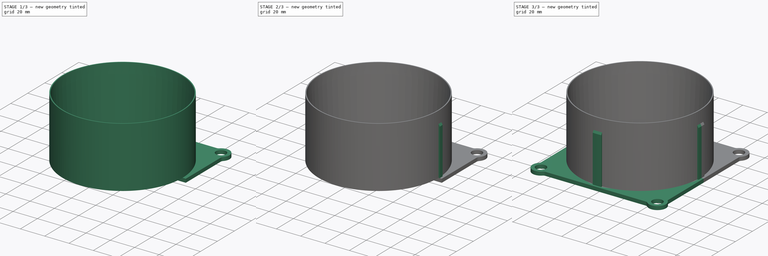
[diagram: build sequence overview — one tinted view per stage of 3, left to right]
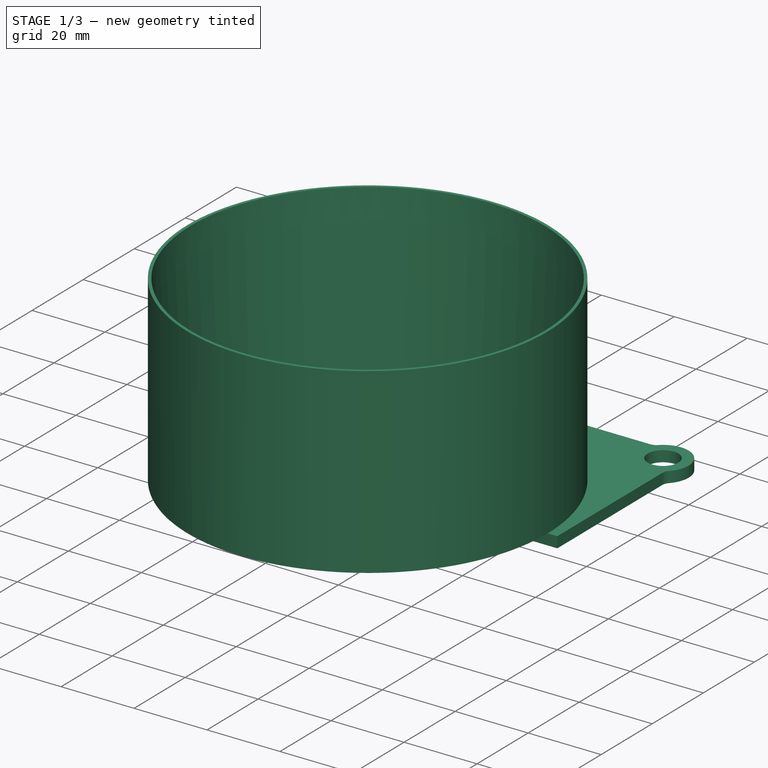
[diagram: stage 1 of 3 — iso view after this stage's code; geometry added in this stage tinted green]
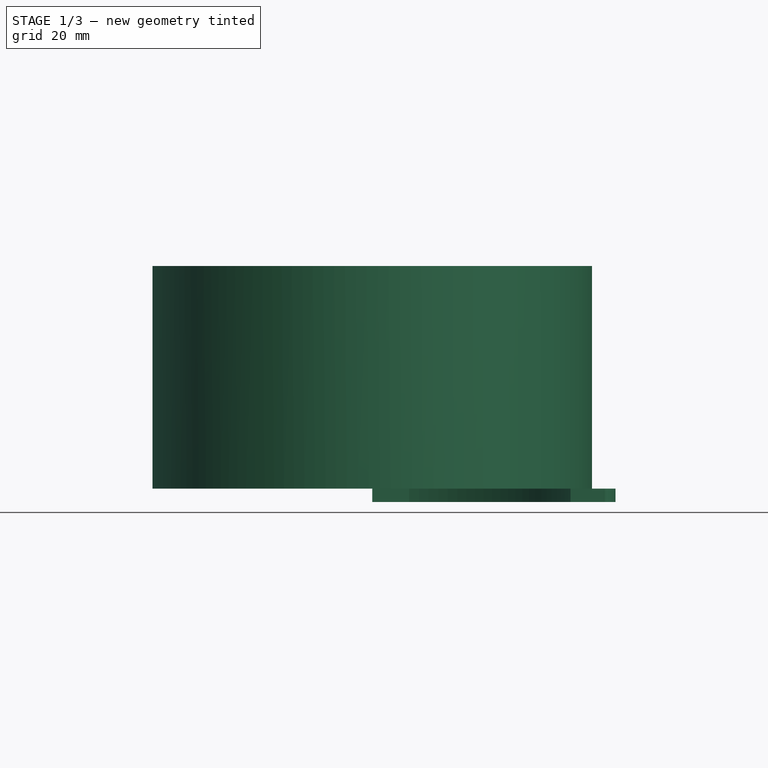
[diagram: stage 1 of 3 — front view after this stage's code; geometry added in this stage tinted green]
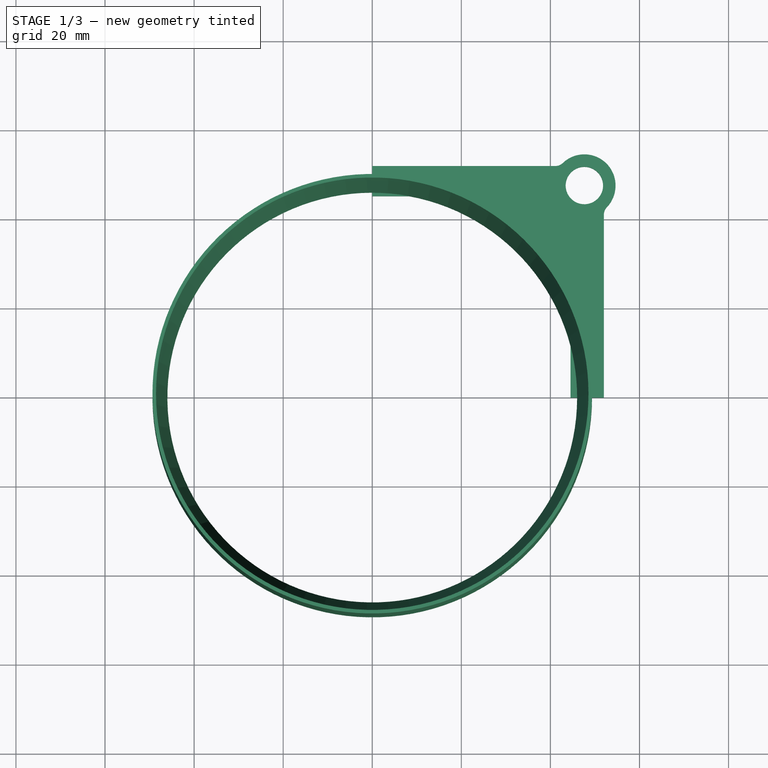
[diagram: stage 1 of 3 — top view after this stage's code; geometry added in this stage tinted green]
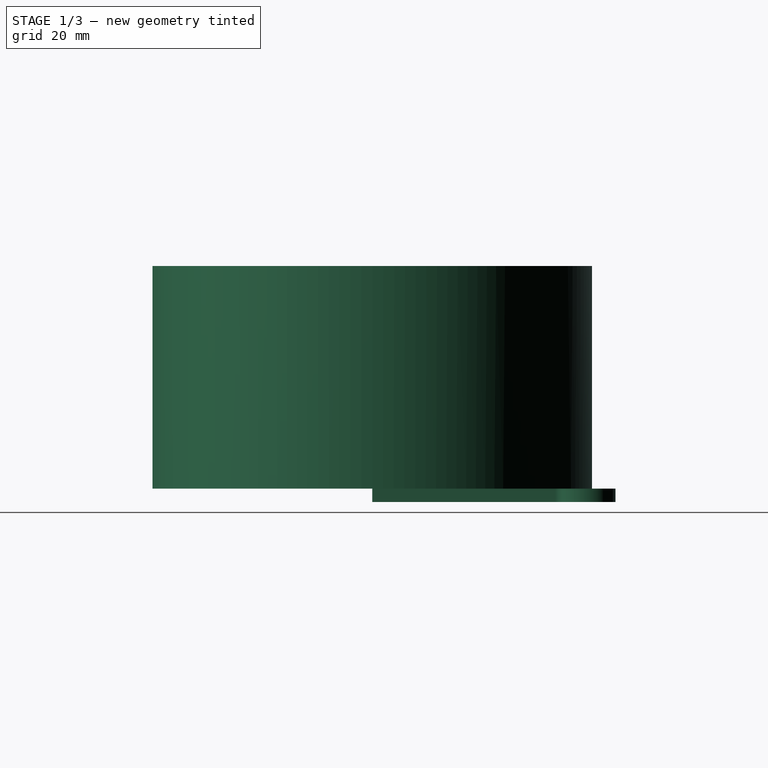
[diagram: stage 1 of 3 — right view after this stage's code; geometry added in this stage tinted green]
FCSTD DOCUMENT  (FreeCAD 0.19R24291 (Git))
Label: Фланец колец
License: All rights reserved
LicenseURL: http://en.wikipedia.org/wiki/All_rights_reserved
objects: Sketcher::SketchObject×3, PartDesign::Mirrored×3, PartDesign::Revolution×2, PartDesign::MultiTransform×2, PartDesign::Pad×1, PartDesign::PolarPattern×1, PartDesign::Body×1
note: 16 computed .brp shape members not serialized (recipe doc carries the construction recipe); baked Part::Feature solids carry a one-line shape summary decoded from their .brp

FEATURE [Sketcher::SketchObject] Sketch
  FullyConstrained = false
  MapMode = 5
  Support = -> [XY_Plane]
  sketch-geometry (13):
    g0: LineSegment StartX=0 StartY=0 StartZ=0 EndX=56.9154 EndY=56.9154 EndZ=0
    g1: Circle CenterX=47.625 CenterY=47.625 CenterZ=0 NormalX=0 NormalY=0 NormalZ=1 AngleXU=0 Radius=4.2
    g2: LineSegment StartX=0 StartY=45.25 StartZ=0 EndX=8.2727 EndY=45.25 EndZ=0
    g3: LineSegment StartX=44.5 StartY=0 StartZ=0 EndX=44.5 EndY=11.6512 EndZ=0
    g4: ArcOfCircle CenterX=0 CenterY=0 CenterZ=0 NormalX=0 NormalY=0 NormalZ=1 AngleXU=0 Radius=46 StartAngle=0.256076 EndAngle=1.38997
    g5: ArcOfCircle CenterX=47.625 CenterY=47.625 CenterZ=0 NormalX=0 NormalY=0 NormalZ=1 AngleXU=0 Radius=7 StartAngle=5.52151 EndAngle=8.61565
    g6: ArcOfCircle CenterX=41.0688 CenterY=54.5 CenterZ=0 NormalX=0 NormalY=0 NormalZ=1 AngleXU=0 Radius=2.5 StartAngle=4.71239 EndAngle=5.47405
    g7: ArcOfCircle CenterX=54.5 CenterY=41.0688 CenterZ=0 NormalX=0 NormalY=0 NormalZ=1 AngleXU=0 Radius=2.5 StartAngle=2.37993 EndAngle=3.14159
    g8: LineSegment StartX=41.0688 StartY=52 StartZ=0 EndX=0 EndY=52 EndZ=0
    g9: LineSegment StartX=52 StartY=41.0688 StartZ=0 EndX=52 EndY=0 EndZ=0
    g10: LineSegment StartX=0 StartY=45.25 StartZ=0 EndX=0 EndY=52 EndZ=0
    g11: LineSegment StartX=44.5 StartY=0 StartZ=0 EndX=52 EndY=0 EndZ=0
    g12: ArcOfCircle CenterX=0 CenterY=0 CenterZ=0 NormalX=0 NormalY=0 NormalZ=1 AngleXU=0 Radius=49.35 StartAngle=0 EndAngle=1.5708
  constraints (41):
    c: Coincident(g0,g-1)
    c: Angle(g-1,g0) = 0.785398
    c: PointOnObject(g1,g0)
    c: PointOnObject(g2,g-2)
    c: Horizontal(g2)
    c: PointOnObject(g3,g-1)
    c: Vertical(g3)
    c: Coincident(g4,g-1)
    c: Coincident(g4,g3)
    c: Coincident(g4,g2)
    c: Coincident(g5,g1)
    c: Coincident(g6,g5)
    c: Coincident(g7,g5)
    c: Coincident(g8,g6)
    c: PointOnObject(g8,g-2)
    c: Horizontal(g8)
    c: Coincident(g9,g7)
    c: PointOnObject(g9,g-1)
    c: Vertical(g9)
    c: Tangent(g9,g7)
    c: Tangent(g7,g5)
    c: Tangent(g5,g6)
    c: Tangent(g6,g8)
    c: Distance(g4,g3) = 44.5
    c: Distance(g4,g2) = 45.25
    c: Diameter(g4) = 92
    c: Coincident(g10,g2)
    c: Coincident(g10,g8)
    c: Coincident(g11,g3)
    c: Coincident(g11,g9)
    c: Distance(g1,g-1) = 47.625
    c: Equal(g7,g6)
    c: Diameter(g1) = 8.4
    c: Diameter(g5) = 14
    c: Coincident(g12,g4)
    c: PointOnObject(g12,g-1)
    c: PointOnObject(g12,g-2)
    c: Diameter(g12) = 98.7
    c: Distance(g9,g12) = 2.65
    c: Distance(g8,g12) = 2.65
    c: Diameter(g7) = 5
FEATURE [PartDesign::Pad] Pad
  Direction = (1,1,1)
  Length = 3
  Length2 = 100
  Profile = -> Sketch
  Reversed = true
  Type = 0
FEATURE [Sketcher::SketchObject] Sketch001
  FullyConstrained = true
  MapMode = 5
  Placement = pos=(0,0,0) rot=(1,0,0;1.5708rad)
  Support = -> [XZ_Plane]
  sketch-geometry (4):
    g0: LineSegment StartX=46 StartY=0 StartZ=0 EndX=48.55 EndY=50 EndZ=0
    g1: LineSegment StartX=48.55 StartY=50 StartZ=0 EndX=49.35 EndY=50 EndZ=0
    g2: LineSegment StartX=49.35 StartY=50 StartZ=0 EndX=49.35 EndY=0 EndZ=0
    g3: LineSegment StartX=49.35 StartY=0 StartZ=0 EndX=46 EndY=0 EndZ=0
  constraints (13):
    c: PointOnObject(g0,g-1)
    c: Coincident(g0,g1)
    c: Horizontal(g1)
    c: Coincident(g1,g2)
    c: PointOnObject(g2,g-1)
    c: Vertical(g2)
    c: Coincident(g2,g3)
    c: Coincident(g3,g0)
    c: Distance(g0,g-1) = 46
    c: Distance(g2,g-2) = 49.35
    c: Distance(g1) = 0.8
    c: Distance(g2) = 50
    c: Distance(g3) = 3.35
FEATURE [PartDesign::Revolution] Revolution
  Angle = 360
  Axis = (0,2e-16,1)
  Base = (0,0,0)
  BaseFeature = -> Pad
  Profile = -> Sketch001
  ReferenceAxis = -> Sketch001 [V_Axis]
  Reversed = true
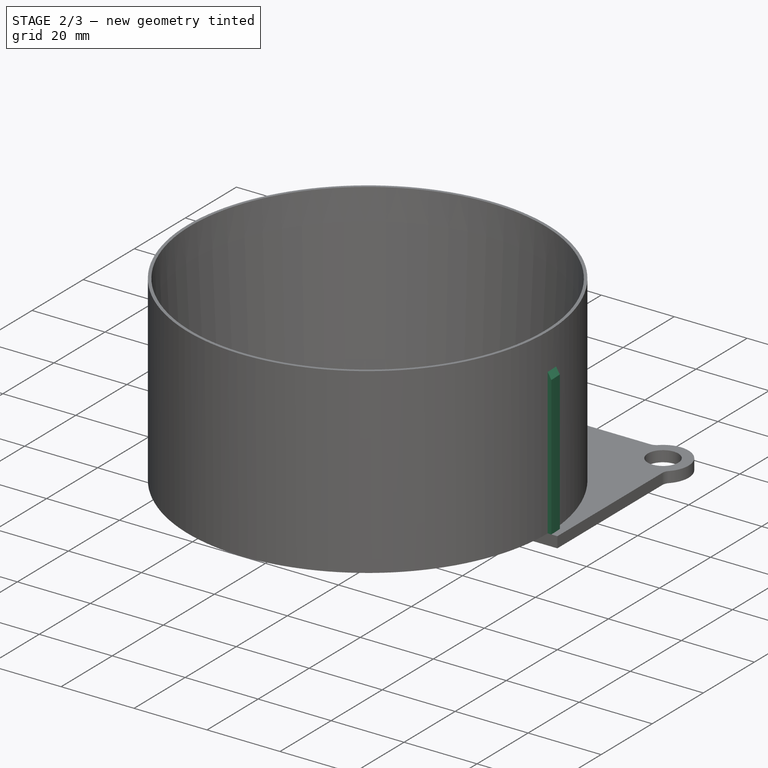
[diagram: stage 2 of 3 — iso view after this stage's code; geometry added in this stage tinted green]
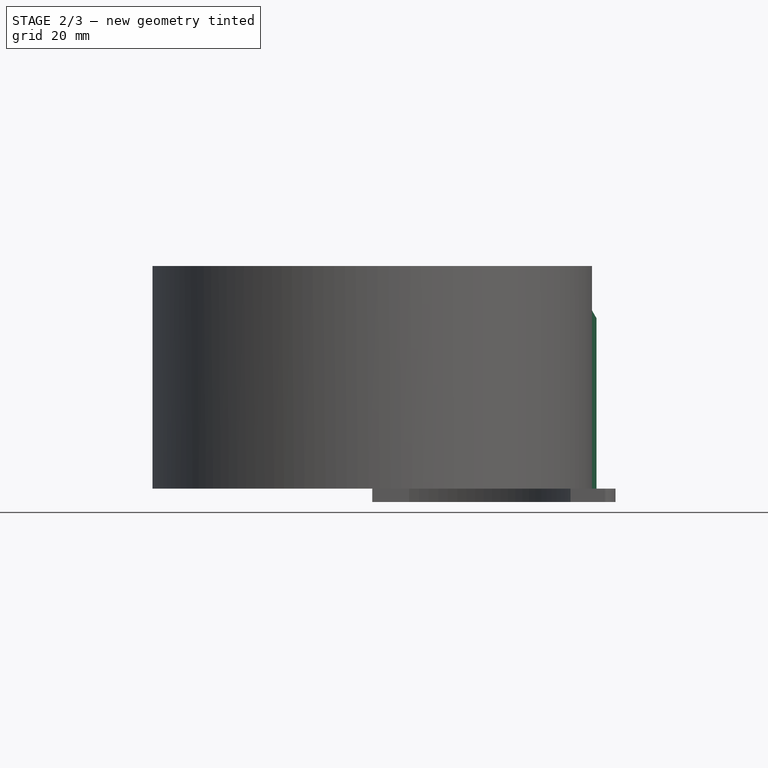
[diagram: stage 2 of 3 — front view after this stage's code; geometry added in this stage tinted green]
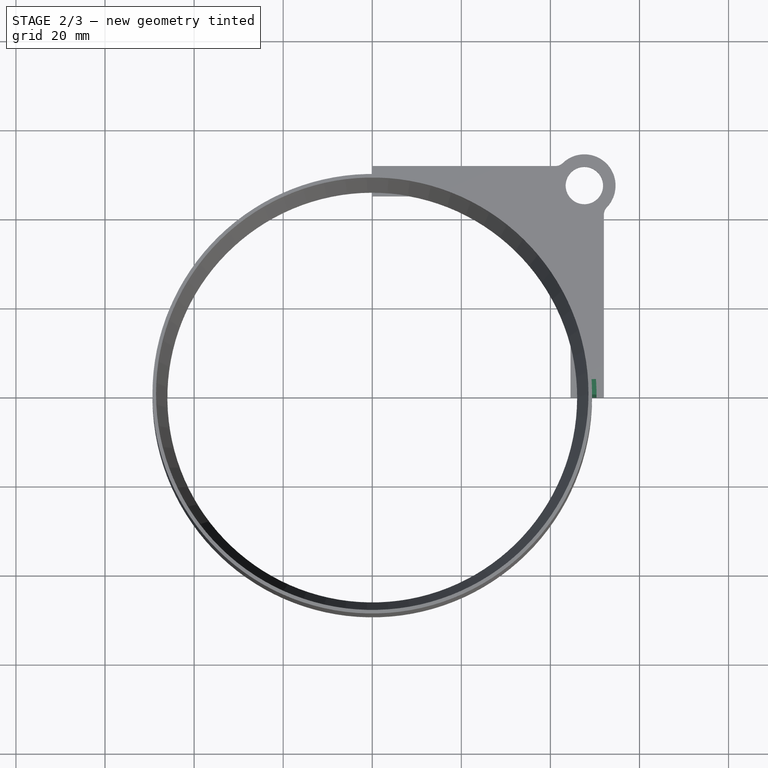
[diagram: stage 2 of 3 — top view after this stage's code; geometry added in this stage tinted green]
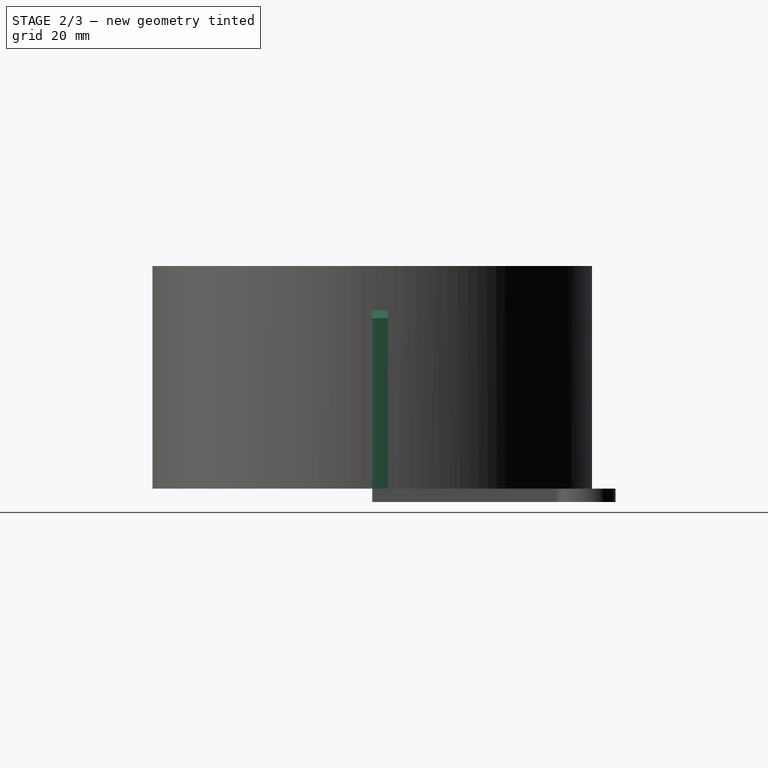
[diagram: stage 2 of 3 — right view after this stage's code; geometry added in this stage tinted green]
FEATURE [Sketcher::SketchObject] Sketch002
  FullyConstrained = true
  MapMode = 5
  Placement = pos=(0,0,0) rot=(1,0,0;1.5708rad)
  Support = -> [XZ_Plane]
  sketch-geometry (4):
    g0: LineSegment StartX=49.35 StartY=0 StartZ=0 EndX=49.35 EndY=40 EndZ=0
    g1: LineSegment StartX=49.35 StartY=40 StartZ=0 EndX=50.35 EndY=38.2679 EndZ=0
    g2: LineSegment StartX=50.35 StartY=38.2679 StartZ=0 EndX=50.35 EndY=0 EndZ=0
    g3: LineSegment StartX=49.35 StartY=0 StartZ=0 EndX=50.35 EndY=0 EndZ=0
  constraints (12):
    c: PointOnObject(g0,g-1)
    c: Vertical(g0)
    c: Coincident(g1,g0)
    c: Coincident(g2,g1)
    c: PointOnObject(g2,g-1)
    c: Vertical(g2)
    c: Coincident(g3,g0)
    c: Coincident(g3,g2)
    c: Angle(g0,g1) = 0.523599
    c: Distance(g0,g-2) = 49.35
    c: Distance(g3) = 1
    c: Distance(g0) = 40
FEATURE [PartDesign::Revolution] Revolution001
  Angle = 4
  Axis = (0,2e-16,1)
  Base = (0,0,0)
  BaseFeature = -> Revolution
  Profile = -> Sketch002
  ReferenceAxis = -> Sketch002 [V_Axis]
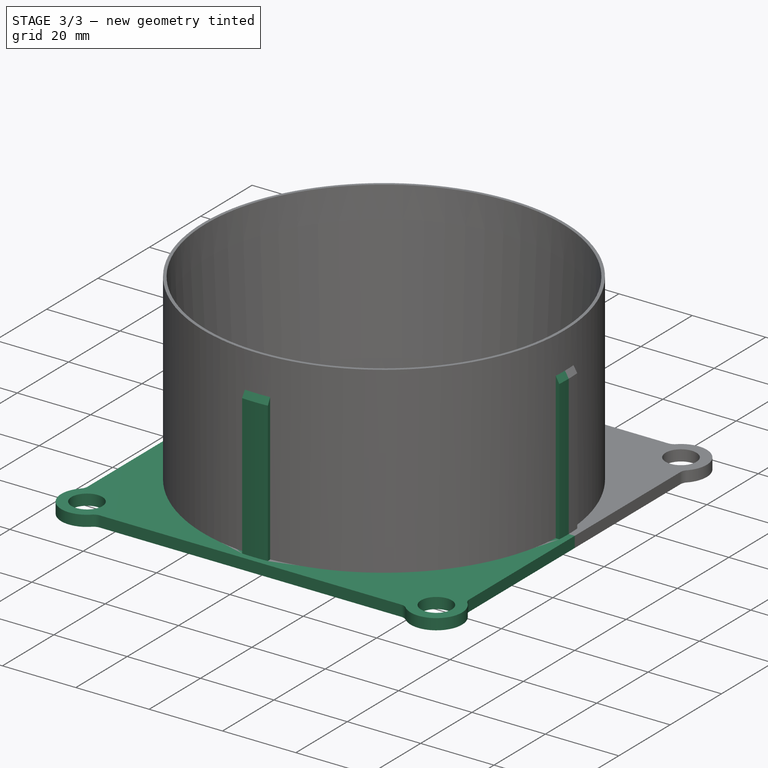
[diagram: stage 3 of 3 — iso view after this stage's code; geometry added in this stage tinted green]
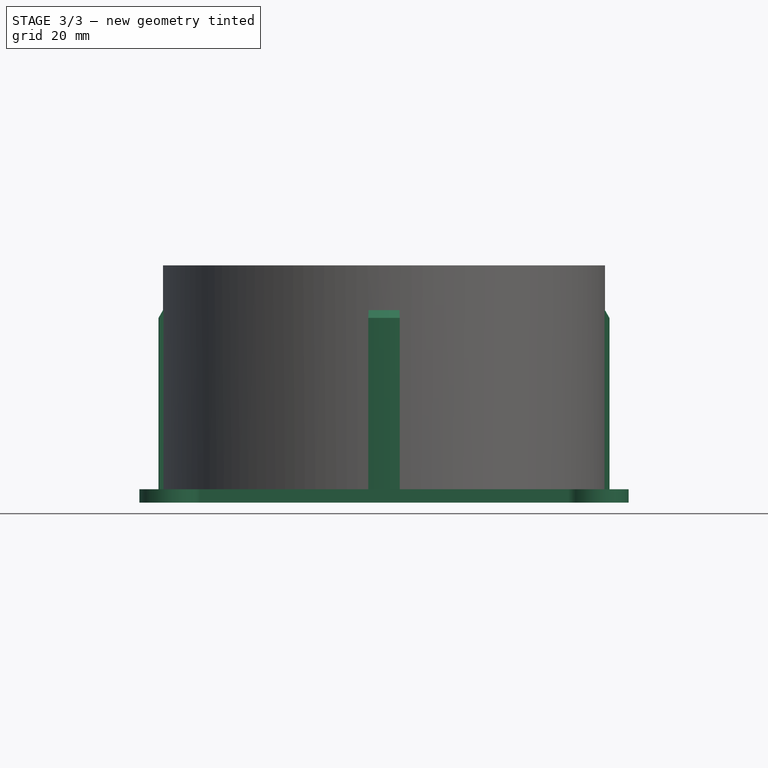
[diagram: stage 3 of 3 — front view after this stage's code; geometry added in this stage tinted green]
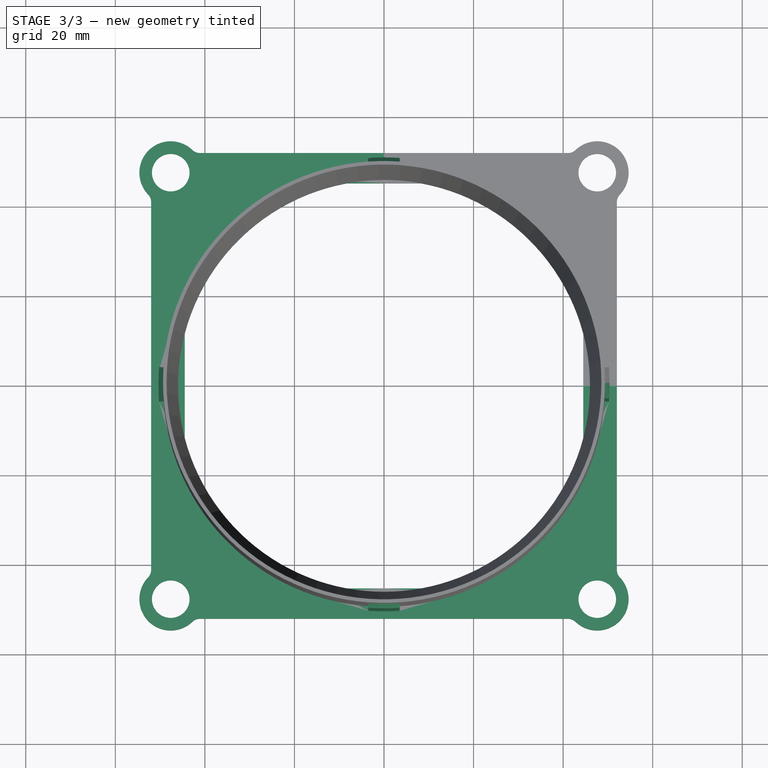
[diagram: stage 3 of 3 — top view after this stage's code; geometry added in this stage tinted green]
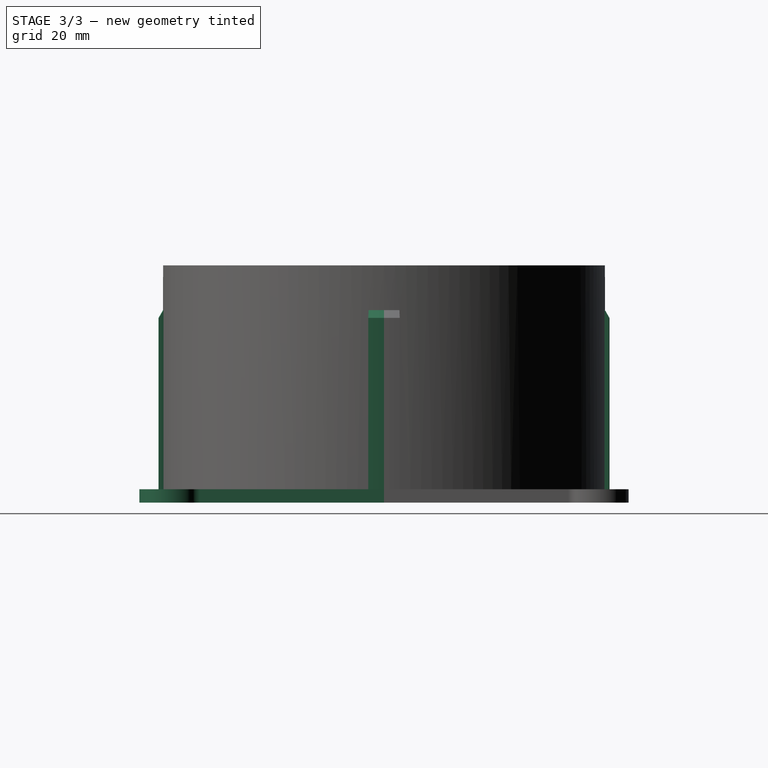
[diagram: stage 3 of 3 — right view after this stage's code; geometry added in this stage tinted green]
FEATURE [PartDesign::Mirrored] Mirrored
  MirrorPlane = -> Sketch [V_Axis]
FEATURE [PartDesign::Mirrored] Mirrored001
  MirrorPlane = -> Sketch [H_Axis]
FEATURE [PartDesign::MultiTransform] MultiTransform
  BaseFeature = -> Revolution001
  Originals = -> [Pad]
  Transformations = -> [Mirrored,Mirrored001]
FEATURE [PartDesign::Mirrored] Mirrored002
  MirrorPlane = -> XZ_Plane
FEATURE [PartDesign::PolarPattern] PolarPattern
  Angle = 360
  Axis = -> Sketch002 [V_Axis]
  Occurrences = 4
FEATURE [PartDesign::MultiTransform] MultiTransform001
  BaseFeature = -> MultiTransform
  Originals = -> [Revolution001]
  Transformations = -> [Mirrored002,PolarPattern]
FEATURE [PartDesign::Body] Body
  Group = -> [Sketch,Pad,Sketch001,Revolution,Sketch002,Revolution001,MultiTransform,Mirrored,Mirrored001,MultiTransform001,Mirrored002,PolarPattern]
  Origin = -> Origin
  Tip = -> MultiTransform001
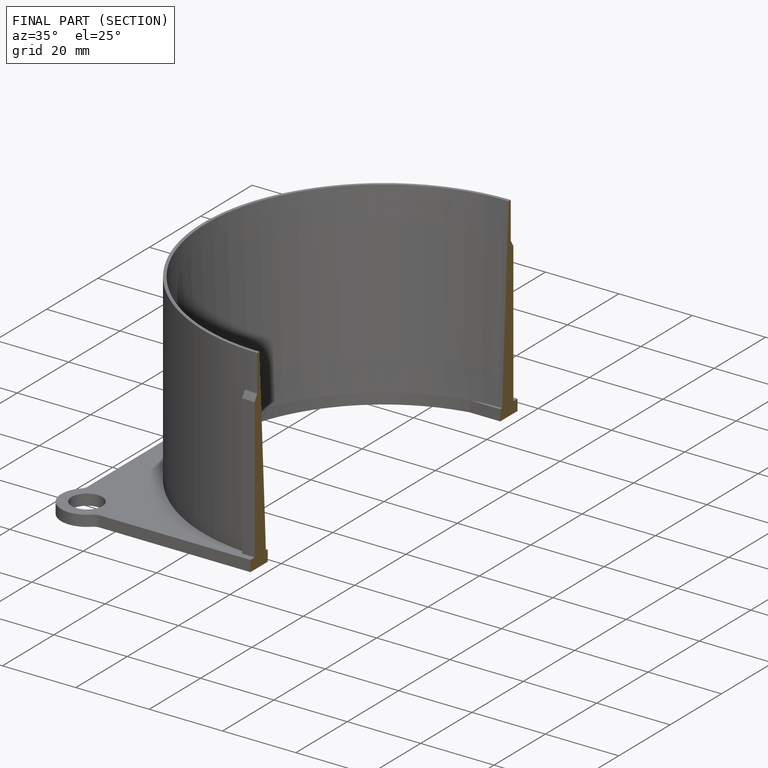
[diagram: finished part — half-section view (interior)]
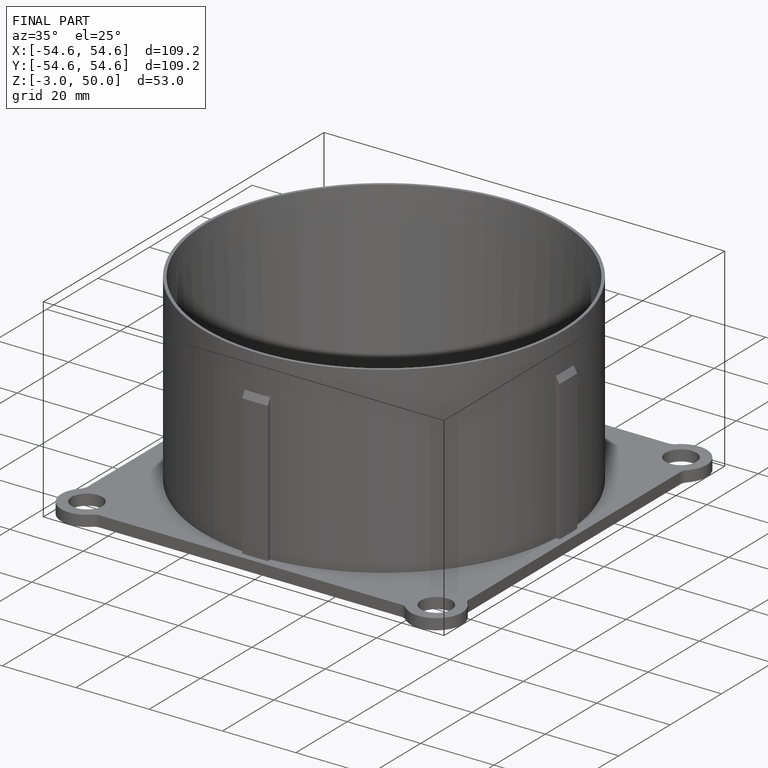
[diagram: finished part — iso view with bounding-box wireframe]
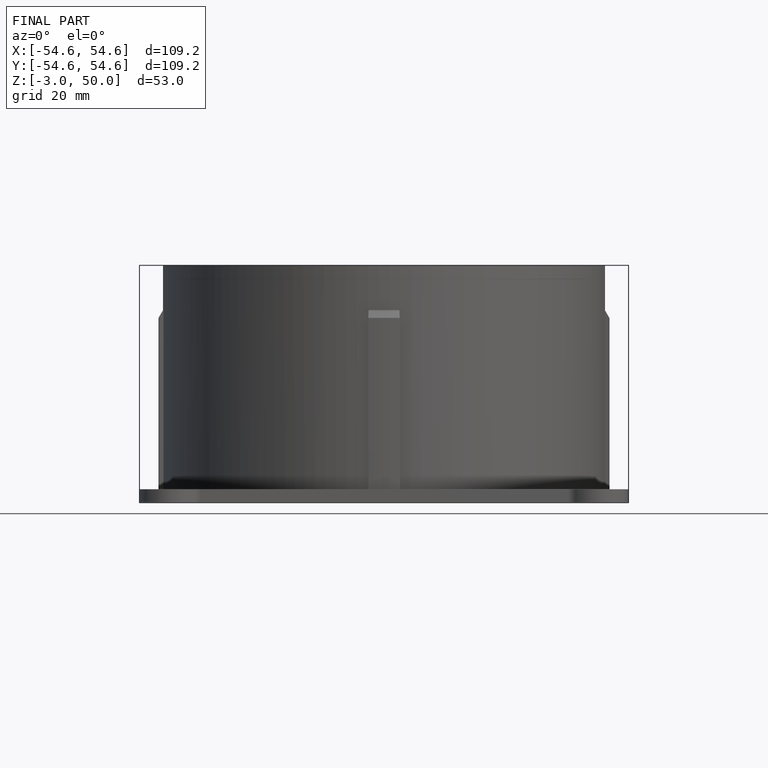
[diagram: finished part — front view with bounding-box wireframe]
